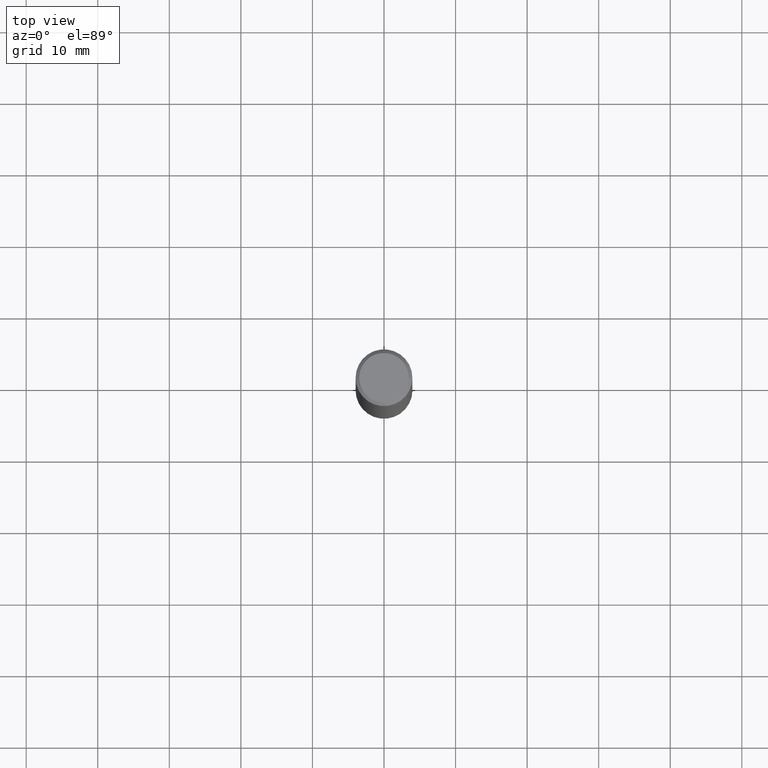
[diagram: clean part render]
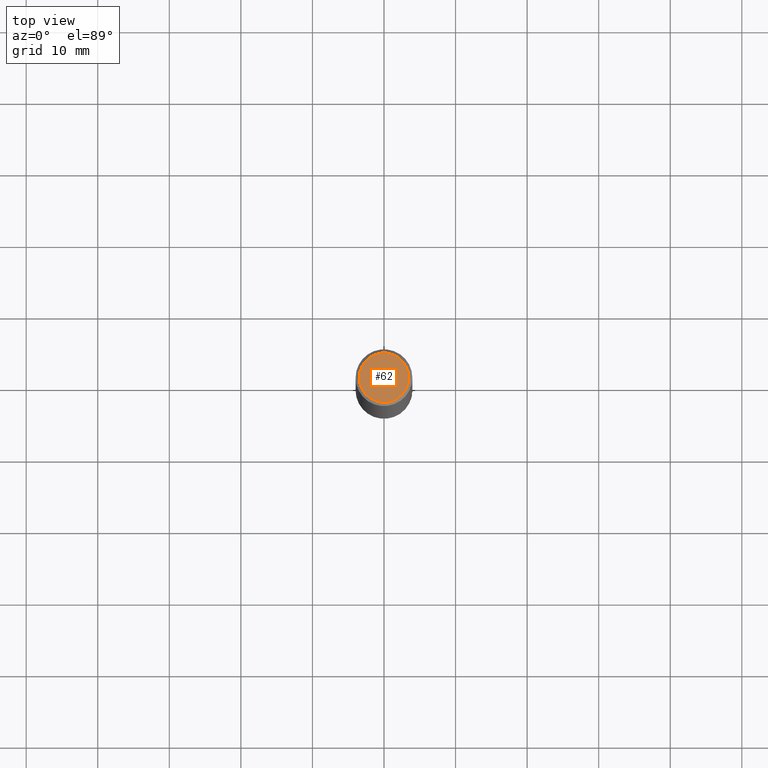
[diagram: same view with one face highlighted and labeled with its STEP entity id]
A machine part, top view. The second image highlights one B-rep face of the part: STEP entity #62.
In plain terms, the highlighted planar face has unit normal (0, -0, -1).
Its self-contained STEP definition (entity closure, byte-faithful):
#18 = ORIENTED_EDGE ( 'NONE', *, *, #30, .T. ) ;
#24 = EDGE_CURVE ( 'NONE', #120, #305, #95, .T. ) ;
#28 = FACE_OUTER_BOUND ( 'NONE', #187, .T. ) ;
#30 = EDGE_CURVE ( 'NONE', #305, #120, #47, .T. ) ;
#47 = CIRCLE ( 'NONE', #321, 0.1362499999999997047 ) ;
#48 = DIRECTION ( 'NONE',  ( -2.445468806185136597E-29, 3.491481338843145583E-15, 1.000000000000000000 ) ) ;
#55 = DIRECTION ( 'NONE',  ( 2.438088387897960049E-29, -3.491481338843145188E-15, -1.000000000000000000 ) ) ;
#60 = CARTESIAN_POINT ( 'NONE',  ( 0.1362499999999997047, -1.038262645562515955E-15, 6.957025900226681062E-30 ) ) ;
#62 = ADVANCED_FACE ( 'NONE', ( #28 ), #319, .F. ) ;
#95 = CIRCLE ( 'NONE', #287, 0.1362499999999997047 ) ;
#113 = CARTESIAN_POINT ( 'NONE',  ( 9.514286648347515911E-16, 0.1362499999999997047, -4.757143324173775705E-16 ) ) ;
#120 = VERTEX_POINT ( 'NONE', #255 ) ;
#171 = AXIS2_PLACEMENT_3D ( 'NONE', #113, #55, #177 ) ;
#177 = DIRECTION ( 'NONE',  ( -1.000000000000000000, 6.982962677686265922E-15, -4.876176775795935793E-29 ) ) ;
#187 = EDGE_LOOP ( 'NONE', ( #241, #18 ) ) ;
#239 = DIRECTION ( 'NONE',  ( -2.445468806185136597E-29, 3.491481338843145583E-15, 1.000000000000000000 ) ) ;
#241 = ORIENTED_EDGE ( 'NONE', *, *, #24, .T. ) ;
#255 = CARTESIAN_POINT ( 'NONE',  ( -0.1362499999999997047, 9.863434782231830429E-16, -6.775751096333125871E-30 ) ) ;
#270 = CARTESIAN_POINT ( 'NONE',  ( 0.000000000000000000, 0.000000000000000000, 0.000000000000000000 ) ) ;
#287 = AXIS2_PLACEMENT_3D ( 'NONE', #339, #48, #309 ) ;
#305 = VERTEX_POINT ( 'NONE', #60 ) ;
#309 = DIRECTION ( 'NONE',  ( 1.000000000000000000, -6.982962677686266711E-15, 4.876176775795936353E-29 ) ) ;
#319 = PLANE ( 'NONE',  #171 ) ;
#321 = AXIS2_PLACEMENT_3D ( 'NONE', #270, #239, #356 ) ;
#339 = CARTESIAN_POINT ( 'NONE',  ( 0.000000000000000000, 0.000000000000000000, 0.000000000000000000 ) ) ;
#356 = DIRECTION ( 'NONE',  ( 1.000000000000000000, -6.982962677686266711E-15, 4.876176775795936353E-29 ) ) ;